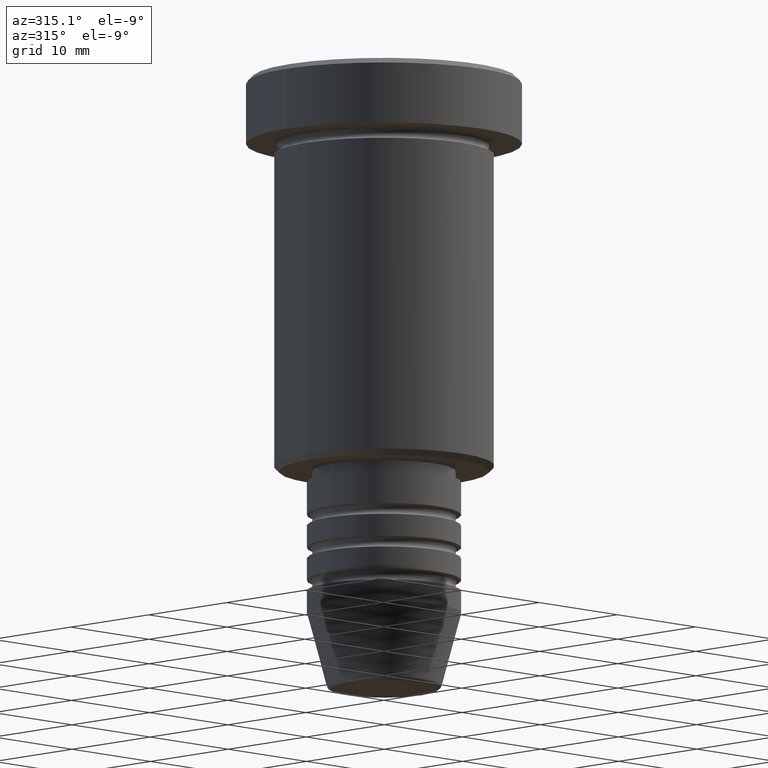
[diagram: clean part render]
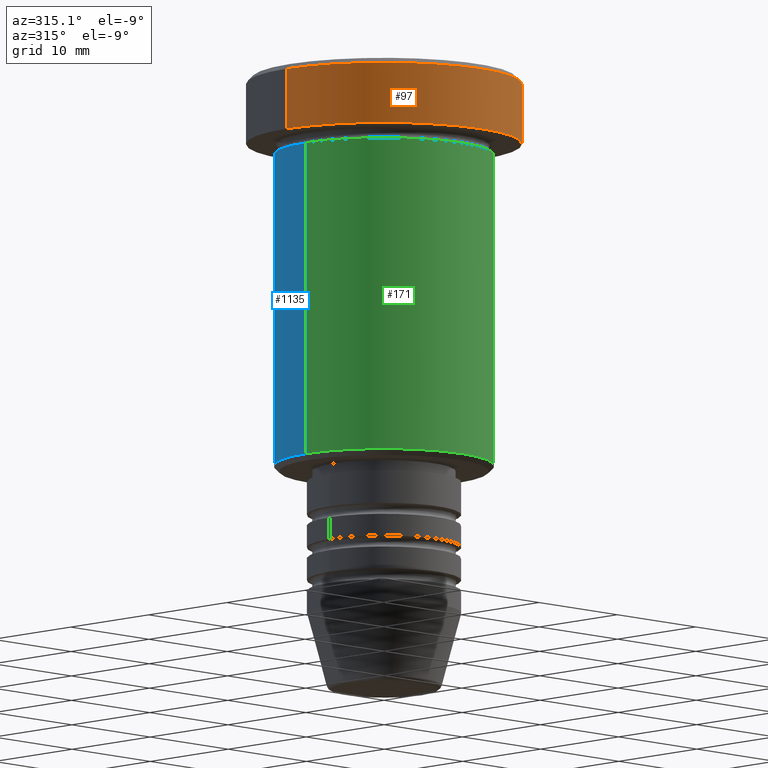
[diagram: same view with three faces highlighted in distinct colors, each labeled with its STEP entity id]
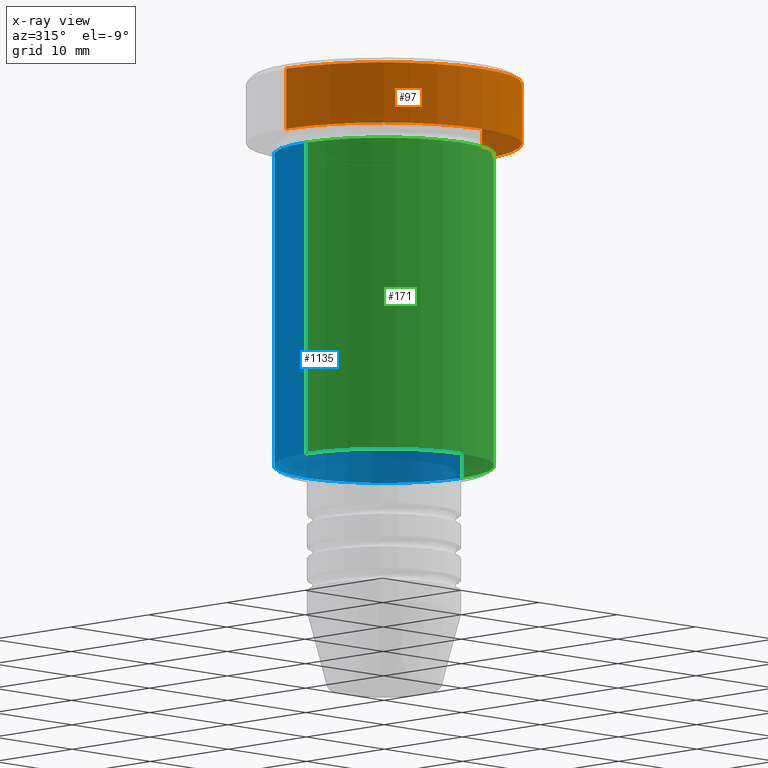
[diagram: x-ray of the same camera — body ghosted, the three highlighted faces saturated]
A machine part, auxiliary view with three faces highlighted in distinct colors.
The next image is the same camera in x-ray (body ghosted, the three faces saturated) — at least one of them is partly hidden behind the body in this view.
Their STEP definitions:

[orange] entity #97 — the highlighted cylindrical surface (partial cylindrical patch) has radius 12.5 mm, axis along (-0, -0, 1).
#1 = VERTEX_POINT ( 'NONE', #698 ) ;
#2 = CARTESIAN_POINT ( 'NONE',  ( 0.000000000000000000, 0.000000000000000000, -0.5000000000000056621 ) ) ;
#45 = EDGE_CURVE ( 'NONE', #1, #861, #570, .T. ) ;
#61 = EDGE_CURVE ( 'NONE', #1, #590, #85, .T. ) ;
#76 = EDGE_CURVE ( 'NONE', #590, #893, #203, .T. ) ;
#85 = CIRCLE ( 'NONE', #333, 12.50000000000000000 ) ;
#97 = ADVANCED_FACE ( 'NONE', ( #1118 ), #297, .T. ) ;
#203 = LINE ( 'NONE', #219, #1094 ) ;
#219 = CARTESIAN_POINT ( 'NONE',  ( 12.50000000000000000, 0.000000000000000000, 0.000000000000000000 ) ) ;
#233 = AXIS2_PLACEMENT_3D ( 'NONE', #676, #1035, #493 ) ;
#241 = ORIENTED_EDGE ( 'NONE', *, *, #76, .T. ) ;
#266 = CARTESIAN_POINT ( 'NONE',  ( 12.50000000000000000, 0.000000000000000000, -5.999999999999996447 ) ) ;
#292 = DIRECTION ( 'NONE',  ( -0.000000000000000000, -0.000000000000000000, 1.000000000000000000 ) ) ;
#297 = CYLINDRICAL_SURFACE ( 'NONE', #233, 12.50000000000000000 ) ;
#333 = AXIS2_PLACEMENT_3D ( 'NONE', #1105, #292, #848 ) ;
#376 = DIRECTION ( 'NONE',  ( 1.000000000000000000, 0.000000000000000000, 0.000000000000000000 ) ) ;
#435 = CARTESIAN_POINT ( 'NONE',  ( 12.50000000000000000, 0.000000000000000000, -0.5000000000000056621 ) ) ;
#479 = DIRECTION ( 'NONE',  ( -0.000000000000000000, -0.000000000000000000, 1.000000000000000000 ) ) ;
#493 = DIRECTION ( 'NONE',  ( 1.000000000000000000, 0.000000000000000000, 0.000000000000000000 ) ) ;
#570 = LINE ( 'NONE', #663, #853 ) ;
#574 = DIRECTION ( 'NONE',  ( -0.000000000000000000, -0.000000000000000000, 1.000000000000000000 ) ) ;
#590 = VERTEX_POINT ( 'NONE', #266 ) ;
#629 = CIRCLE ( 'NONE', #1111, 12.50000000000000000 ) ;
#663 = CARTESIAN_POINT ( 'NONE',  ( -12.50000000000000000, 1.530808498934191521E-15, 0.000000000000000000 ) ) ;
#676 = CARTESIAN_POINT ( 'NONE',  ( 0.000000000000000000, 0.000000000000000000, 0.000000000000000000 ) ) ;
#698 = CARTESIAN_POINT ( 'NONE',  ( -12.50000000000000000, 1.530808498934191521E-15, -5.999999999999996447 ) ) ;
#737 = ORIENTED_EDGE ( 'NONE', *, *, #61, .T. ) ;
#827 = ORIENTED_EDGE ( 'NONE', *, *, #1078, .T. ) ;
#848 = DIRECTION ( 'NONE',  ( 1.000000000000000000, 0.000000000000000000, 0.000000000000000000 ) ) ;
#853 = VECTOR ( 'NONE', #479, 1000.000000000000000 ) ;
#861 = VERTEX_POINT ( 'NONE', #983 ) ;
#893 = VERTEX_POINT ( 'NONE', #435 ) ;
#910 = ORIENTED_EDGE ( 'NONE', *, *, #45, .F. ) ;
#929 = DIRECTION ( 'NONE',  ( 0.000000000000000000, 0.000000000000000000, -1.000000000000000000 ) ) ;
#983 = CARTESIAN_POINT ( 'NONE',  ( -12.50000000000000000, 1.530808498934191521E-15, -0.5000000000000056621 ) ) ;
#1035 = DIRECTION ( 'NONE',  ( -0.000000000000000000, -0.000000000000000000, 1.000000000000000000 ) ) ;
#1045 = EDGE_LOOP ( 'NONE', ( #910, #737, #241, #827 ) ) ;
#1078 = EDGE_CURVE ( 'NONE', #893, #861, #629, .T. ) ;
#1094 = VECTOR ( 'NONE', #574, 1000.000000000000000 ) ;
#1105 = CARTESIAN_POINT ( 'NONE',  ( 0.000000000000000000, 0.000000000000000000, -5.999999999999996447 ) ) ;
#1111 = AXIS2_PLACEMENT_3D ( 'NONE', #2, #929, #376 ) ;
#1118 = FACE_OUTER_BOUND ( 'NONE', #1045, .T. ) ;

[blue] entity #1135 — the highlighted cylindrical surface (partial cylindrical patch) has radius 10 mm, axis along (-0, -0, 1).
#28 = AXIS2_PLACEMENT_3D ( 'NONE', #945, #601, #419 ) ;
#57 = CARTESIAN_POINT ( 'NONE',  ( -10.00000000000000000, 1.224646799147353256E-15, -35.50000000000000000 ) ) ;
#75 = DIRECTION ( 'NONE',  ( 1.000000000000000000, 0.000000000000000000, 0.000000000000000000 ) ) ;
#99 = DIRECTION ( 'NONE',  ( -0.000000000000000000, -0.000000000000000000, 1.000000000000000000 ) ) ;
#111 = DIRECTION ( 'NONE',  ( 1.000000000000000000, 0.000000000000000000, 0.000000000000000000 ) ) ;
#168 = ORIENTED_EDGE ( 'NONE', *, *, #1034, .F. ) ;
#196 = CIRCLE ( 'NONE', #513, 10.00000000000000000 ) ;
#197 = CYLINDRICAL_SURFACE ( 'NONE', #313, 10.00000000000000000 ) ;
#215 = DIRECTION ( 'NONE',  ( -0.000000000000000000, -0.000000000000000000, 1.000000000000000000 ) ) ;
#256 = VECTOR ( 'NONE', #99, 1000.000000000000000 ) ;
#313 = AXIS2_PLACEMENT_3D ( 'NONE', #568, #936, #111 ) ;
#343 = VERTEX_POINT ( 'NONE', #499 ) ;
#364 = VERTEX_POINT ( 'NONE', #57 ) ;
#365 = LINE ( 'NONE', #1098, #256 ) ;
#419 = DIRECTION ( 'NONE',  ( -1.000000000000000000, 0.000000000000000000, 0.000000000000000000 ) ) ;
#463 = ORIENTED_EDGE ( 'NONE', *, *, #714, .T. ) ;
#498 = LINE ( 'NONE', #595, #902 ) ;
#499 = CARTESIAN_POINT ( 'NONE',  ( -10.00000000000000000, 1.224646799147353256E-15, -6.999999999999996447 ) ) ;
#513 = AXIS2_PLACEMENT_3D ( 'NONE', #528, #903, #75 ) ;
#528 = CARTESIAN_POINT ( 'NONE',  ( 0.000000000000000000, 0.000000000000000000, -6.999999999999996447 ) ) ;
#567 = EDGE_LOOP ( 'NONE', ( #463, #787, #1164, #168 ) ) ;
#568 = CARTESIAN_POINT ( 'NONE',  ( 0.000000000000000000, 0.000000000000000000, 0.000000000000000000 ) ) ;
#595 = CARTESIAN_POINT ( 'NONE',  ( -10.00000000000000000, 1.224646799147353256E-15, 0.000000000000000000 ) ) ;
#601 = DIRECTION ( 'NONE',  ( -0.000000000000000000, -0.000000000000000000, 1.000000000000000000 ) ) ;
#607 = CIRCLE ( 'NONE', #28, 10.00000000000000000 ) ;
#660 = FACE_OUTER_BOUND ( 'NONE', #567, .T. ) ;
#714 = EDGE_CURVE ( 'NONE', #1008, #364, #607, .T. ) ;
#729 = EDGE_CURVE ( 'NONE', #364, #343, #498, .T. ) ;
#746 = CARTESIAN_POINT ( 'NONE',  ( 10.00000000000000000, 0.000000000000000000, -35.50000000000000000 ) ) ;
#787 = ORIENTED_EDGE ( 'NONE', *, *, #729, .T. ) ;
#809 = VERTEX_POINT ( 'NONE', #954 ) ;
#902 = VECTOR ( 'NONE', #215, 1000.000000000000000 ) ;
#903 = DIRECTION ( 'NONE',  ( -0.000000000000000000, -0.000000000000000000, 1.000000000000000000 ) ) ;
#936 = DIRECTION ( 'NONE',  ( -0.000000000000000000, -0.000000000000000000, 1.000000000000000000 ) ) ;
#942 = EDGE_CURVE ( 'NONE', #809, #343, #196, .T. ) ;
#945 = CARTESIAN_POINT ( 'NONE',  ( 0.000000000000000000, 0.000000000000000000, -35.50000000000000000 ) ) ;
#954 = CARTESIAN_POINT ( 'NONE',  ( 10.00000000000000000, 0.000000000000000000, -6.999999999999996447 ) ) ;
#1008 = VERTEX_POINT ( 'NONE', #746 ) ;
#1034 = EDGE_CURVE ( 'NONE', #1008, #809, #365, .T. ) ;
#1098 = CARTESIAN_POINT ( 'NONE',  ( 10.00000000000000000, 0.000000000000000000, 0.000000000000000000 ) ) ;
#1135 = ADVANCED_FACE ( 'NONE', ( #660 ), #197, .T. ) ;
#1164 = ORIENTED_EDGE ( 'NONE', *, *, #942, .F. ) ;

[green] entity #171 — the highlighted cylindrical surface (partial cylindrical patch) has radius 10 mm, axis along (-0, -0, 1).
#3 = CYLINDRICAL_SURFACE ( 'NONE', #1007, 10.00000000000000000 ) ;
#57 = CARTESIAN_POINT ( 'NONE',  ( -10.00000000000000000, 1.224646799147353256E-15, -35.50000000000000000 ) ) ;
#95 = DIRECTION ( 'NONE',  ( -0.000000000000000000, -0.000000000000000000, 1.000000000000000000 ) ) ;
#99 = DIRECTION ( 'NONE',  ( -0.000000000000000000, -0.000000000000000000, 1.000000000000000000 ) ) ;
#100 = CARTESIAN_POINT ( 'NONE',  ( 0.000000000000000000, 0.000000000000000000, 0.000000000000000000 ) ) ;
#171 = ADVANCED_FACE ( 'NONE', ( #824 ), #3, .T. ) ;
#215 = DIRECTION ( 'NONE',  ( -0.000000000000000000, -0.000000000000000000, 1.000000000000000000 ) ) ;
#256 = VECTOR ( 'NONE', #99, 1000.000000000000000 ) ;
#336 = CIRCLE ( 'NONE', #390, 10.00000000000000000 ) ;
#343 = VERTEX_POINT ( 'NONE', #499 ) ;
#364 = VERTEX_POINT ( 'NONE', #57 ) ;
#365 = LINE ( 'NONE', #1098, #256 ) ;
#366 = ORIENTED_EDGE ( 'NONE', *, *, #1034, .T. ) ;
#367 = DIRECTION ( 'NONE',  ( 1.000000000000000000, 0.000000000000000000, 0.000000000000000000 ) ) ;
#390 = AXIS2_PLACEMENT_3D ( 'NONE', #883, #425, #681 ) ;
#425 = DIRECTION ( 'NONE',  ( -0.000000000000000000, -0.000000000000000000, 1.000000000000000000 ) ) ;
#483 = DIRECTION ( 'NONE',  ( -0.000000000000000000, -0.000000000000000000, 1.000000000000000000 ) ) ;
#491 = AXIS2_PLACEMENT_3D ( 'NONE', #863, #483, #852 ) ;
#498 = LINE ( 'NONE', #595, #902 ) ;
#499 = CARTESIAN_POINT ( 'NONE',  ( -10.00000000000000000, 1.224646799147353256E-15, -6.999999999999996447 ) ) ;
#559 = ORIENTED_EDGE ( 'NONE', *, *, #759, .T. ) ;
#595 = CARTESIAN_POINT ( 'NONE',  ( -10.00000000000000000, 1.224646799147353256E-15, 0.000000000000000000 ) ) ;
#632 = ORIENTED_EDGE ( 'NONE', *, *, #719, .F. ) ;
#677 = ORIENTED_EDGE ( 'NONE', *, *, #729, .F. ) ;
#681 = DIRECTION ( 'NONE',  ( -1.000000000000000000, 0.000000000000000000, 0.000000000000000000 ) ) ;
#690 = CIRCLE ( 'NONE', #491, 10.00000000000000000 ) ;
#719 = EDGE_CURVE ( 'NONE', #343, #809, #690, .T. ) ;
#729 = EDGE_CURVE ( 'NONE', #364, #343, #498, .T. ) ;
#732 = EDGE_LOOP ( 'NONE', ( #677, #559, #366, #632 ) ) ;
#746 = CARTESIAN_POINT ( 'NONE',  ( 10.00000000000000000, 0.000000000000000000, -35.50000000000000000 ) ) ;
#759 = EDGE_CURVE ( 'NONE', #364, #1008, #336, .T. ) ;
#809 = VERTEX_POINT ( 'NONE', #954 ) ;
#824 = FACE_OUTER_BOUND ( 'NONE', #732, .T. ) ;
#852 = DIRECTION ( 'NONE',  ( 1.000000000000000000, 0.000000000000000000, 0.000000000000000000 ) ) ;
#863 = CARTESIAN_POINT ( 'NONE',  ( 0.000000000000000000, 0.000000000000000000, -6.999999999999996447 ) ) ;
#883 = CARTESIAN_POINT ( 'NONE',  ( 0.000000000000000000, 0.000000000000000000, -35.50000000000000000 ) ) ;
#902 = VECTOR ( 'NONE', #215, 1000.000000000000000 ) ;
#954 = CARTESIAN_POINT ( 'NONE',  ( 10.00000000000000000, 0.000000000000000000, -6.999999999999996447 ) ) ;
#1007 = AXIS2_PLACEMENT_3D ( 'NONE', #100, #95, #367 ) ;
#1008 = VERTEX_POINT ( 'NONE', #746 ) ;
#1034 = EDGE_CURVE ( 'NONE', #1008, #809, #365, .T. ) ;
#1098 = CARTESIAN_POINT ( 'NONE',  ( 10.00000000000000000, 0.000000000000000000, 0.000000000000000000 ) ) ;